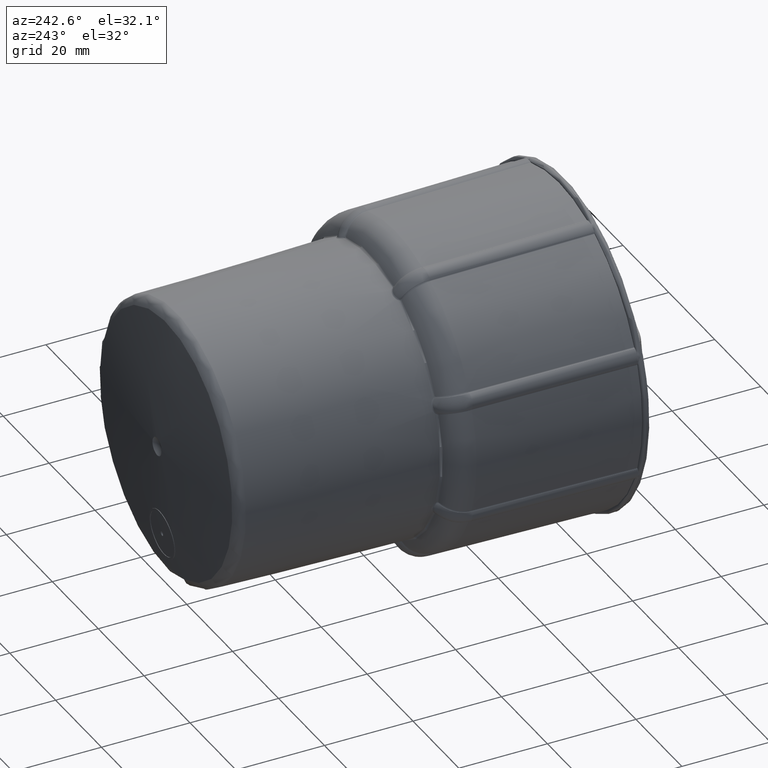
[diagram: clean part render]
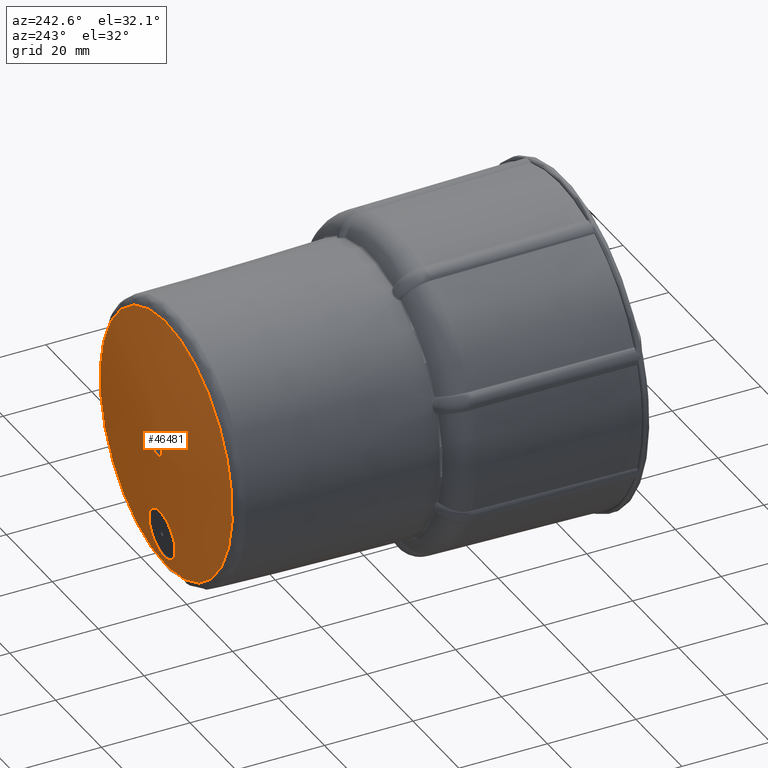
[diagram: same view with one face highlighted and labeled with its STEP entity id]
A machine part, auxiliary view. The second image highlights one B-rep face of the part: STEP entity #46481.
In plain terms, the highlighted spherical surface has radius 201.2 mm.
Its self-contained STEP definition (entity closure, byte-faithful):
#100=SPHERICAL_SURFACE('',#50493,201.2);
#1612=FACE_BOUND('',#14511,.T.);
#1613=FACE_BOUND('',#14512,.T.);
#11826=FACE_OUTER_BOUND('',#14510,.T.);
#14510=EDGE_LOOP('',(#42334));
#14511=EDGE_LOOP('',(#42335,#42336));
#14512=EDGE_LOOP('',(#42337));
#16231=CIRCLE('',#50492,2.0285217135065);
#16232=CIRCLE('',#50494,28.780682383432);
#17823=B_SPLINE_CURVE_WITH_KNOTS('',3,(#99211,#99212,#99213,#99214,#99215,
#99216,#99217,#99218,#99219,#99220,#99221,#99222,#99223,#99224,#99225,#99226,
#99227,#99228),.UNSPECIFIED.,.F.,.F.,(4,2,2,2,2,2,2,2,4),(0.,0.207534226151405,
0.415068452302811,0.623495346482685,0.831922240662559,1.03988339253521,
1.24784454440786,1.45491257878239,1.66198061315693),.UNSPECIFIED.);
#17824=B_SPLINE_CURVE_WITH_KNOTS('',3,(#99229,#99230,#99231,#99232,#99233,
#99234,#99235,#99236,#99237,#99238,#99239,#99240,#99241,#99242,#99243,#99244,
#99245,#99246),.UNSPECIFIED.,.F.,.F.,(4,2,2,2,2,2,2,2,4),(1.66198061315693,
1.86951974804609,2.07705888293525,2.28548484750556,2.49391081207586,2.70186575340693,
2.90982069473799,3.11688988136123,3.32395906798447),.UNSPECIFIED.);
#22153=VERTEX_POINT('',#99204);
#22154=VERTEX_POINT('',#99207);
#22155=VERTEX_POINT('',#99209);
#22156=VERTEX_POINT('',#99210);
#29065=EDGE_CURVE('',#22153,#22153,#16231,.T.);
#29066=EDGE_CURVE('',#22154,#22154,#16232,.T.);
#29067=EDGE_CURVE('',#22155,#22156,#17823,.T.);
#29068=EDGE_CURVE('',#22156,#22155,#17824,.T.);
#42334=ORIENTED_EDGE('',*,*,#29066,.F.);
#42335=ORIENTED_EDGE('',*,*,#29067,.F.);
#42336=ORIENTED_EDGE('',*,*,#29068,.F.);
#42337=ORIENTED_EDGE('',*,*,#29065,.T.);
#46481=ADVANCED_FACE('',(#11826,#1612,#1613),#100,.T.);
#50492=AXIS2_PLACEMENT_3D('',#99205,#61560,#61561);
#50493=AXIS2_PLACEMENT_3D('',#99206,#61562,#61563);
#50494=AXIS2_PLACEMENT_3D('',#99208,#61564,#61565);
#61560=DIRECTION('center_axis',(6.12323399573676E-17,-1.,-3.29495923550177E-33));
#61561=DIRECTION('ref_axis',(-0.38268343236509,-2.34326020266315E-17,-0.923879532511287));
#61562=DIRECTION('center_axis',(0.923879532511287,1.41260981264433E-16,
-0.38268343236509));
#61563=DIRECTION('ref_axis',(0.000485811027173413,0.999999194203095,0.00117285157055261));
#61564=DIRECTION('center_axis',(6.12323399573676E-17,-1.,-3.29495923550177E-33));
#61565=DIRECTION('ref_axis',(-0.38268343236509,-2.34326020266315E-17,-0.923879532511287));
#99204=CARTESIAN_POINT('',(-0.776281651951788,86.709572578339,-1.87410969236338));
#99205=CARTESIAN_POINT('Origin',(-6.13606661509936E-15,86.709572578339,
3.30186456652683E-31));
#99206=CARTESIAN_POINT('Origin',(6.18254895933988E-15,-114.480201266302,
-1.70214987094643E-18));
#99207=CARTESIAN_POINT('',(26.5898833857609,84.6506911676545,-11.0138903203012));
#99208=CARTESIAN_POINT('Origin',(-6.00999648862842E-15,84.6506911676545,
3.23402526333746E-31));
#99209=CARTESIAN_POINT('',(2.10475887800799,86.0780350941378,-15.9186625711879));
#99210=CARTESIAN_POINT('',(-2.104758878008,85.0110863329058,-26.0813374288121));
#99211=CARTESIAN_POINT('Ctrl Pts',(2.10475887800799,86.0780350941378,-15.9186625711879));
#99212=CARTESIAN_POINT('Ctrl Pts',(2.74336848782641,86.0503377225852,-16.1831833326365));
#99213=CARTESIAN_POINT('Ctrl Pts',(3.3709143810989,86.0074465554395,-16.5927623098486));
#99214=CARTESIAN_POINT('Ctrl Pts',(4.40709102903072,85.8988879666448,-17.6288939178568));
#99215=CARTESIAN_POINT('Ctrl Pts',(4.815745756994,85.8332199078576,-18.2554225072738));
#99216=CARTESIAN_POINT('Ctrl Pts',(5.34485125238644,85.6995493617985,-19.5300458242442));
#99217=CARTESIAN_POINT('Ctrl Pts',(5.49972142244911,85.6225470557818,-20.2639536047852));
#99218=CARTESIAN_POINT('Ctrl Pts',(5.50027778736658,85.4684349001387,-21.7318769763402));
#99219=CARTESIAN_POINT('Ctrl Pts',(5.34596452053527,85.3913250223987,-22.4658925641985));
#99220=CARTESIAN_POINT('Ctrl Pts',(4.81730166208433,85.2571817871717,-23.7421976069937));
#99221=CARTESIAN_POINT('Ctrl Pts',(4.40807810467908,85.1911487791464,-24.3701179186072));
#99222=CARTESIAN_POINT('Ctrl Pts',(3.36993603778419,85.0819390878051,-25.4082171217238));
#99223=CARTESIAN_POINT('Ctrl Pts',(2.74099324617887,85.038768102169,-25.8183723292288));
#99224=CARTESIAN_POINT('Ctrl Pts',(1.46349770065311,84.983185485446,-26.3463836799717));
#99225=CARTESIAN_POINT('Ctrl Pts',(0.730666404715251,84.9669803032792,-26.5002800940812));
#99226=CARTESIAN_POINT('Ctrl Pts',(-0.734877084535488,84.9670393709152,
-26.4997191000177));
#99227=CARTESIAN_POINT('Ctrl Pts',(-1.46758927785888,84.9833036154003,-26.3452617187257));
#99228=CARTESIAN_POINT('Ctrl Pts',(-2.104758878008,85.0110863329058,-26.0813374288121));
#99229=CARTESIAN_POINT('Ctrl Pts',(-2.104758878008,85.0110863329058,-26.0813374288121));
#99230=CARTESIAN_POINT('Ctrl Pts',(-2.74337810280558,85.0389322588759,-25.8168126847087));
#99231=CARTESIAN_POINT('Ctrl Pts',(-3.37092574289206,85.0820430169911,-25.4072292184622));
#99232=CARTESIAN_POINT('Ctrl Pts',(-4.40710161864766,85.1910462405733,-24.3710926033153));
#99233=CARTESIAN_POINT('Ctrl Pts',(-4.81575419892627,85.2569330204575,-23.7445632021013));
#99234=CARTESIAN_POINT('Ctrl Pts',(-5.34484954899543,85.390898478353,-22.4699522071322));
#99235=CARTESIAN_POINT('Ctrl Pts',(-5.49971966784601,85.4679959692364,-21.7360561919191));
#99236=CARTESIAN_POINT('Ctrl Pts',(-5.5002795321864,85.6221078187587,-20.2681389584626));
#99237=CARTESIAN_POINT('Ctrl Pts',(-5.34596878970596,85.6991222008134,-19.5341177424912));
#99238=CARTESIAN_POINT('Ctrl Pts',(-4.81730411011065,85.8329698431927,-18.2578083030646));
#99239=CARTESIAN_POINT('Ctrl Pts',(-4.40808373797442,85.8987835254859,-17.6298907466648));
#99240=CARTESIAN_POINT('Ctrl Pts',(-3.36995286403618,86.0075477286613,-16.5917966716898));
#99241=CARTESIAN_POINT('Ctrl Pts',(-2.7410184524852,86.0504989116185,-16.1816441333551));
#99242=CARTESIAN_POINT('Ctrl Pts',(-1.4635318301871,86.1057866186525,-15.653624408121));
#99243=CARTESIAN_POINT('Ctrl Pts',(-0.730694890601226,86.1218965296361,
-15.499722854038));
#99244=CARTESIAN_POINT('Ctrl Pts',(0.734861151918212,86.1218384210675,-15.5002779349499));
#99245=CARTESIAN_POINT('Ctrl Pts',(1.46758025486168,86.1056704018428,-15.6547345438265));
#99246=CARTESIAN_POINT('Ctrl Pts',(2.10475887800799,86.0780350941378,-15.9186625711879));